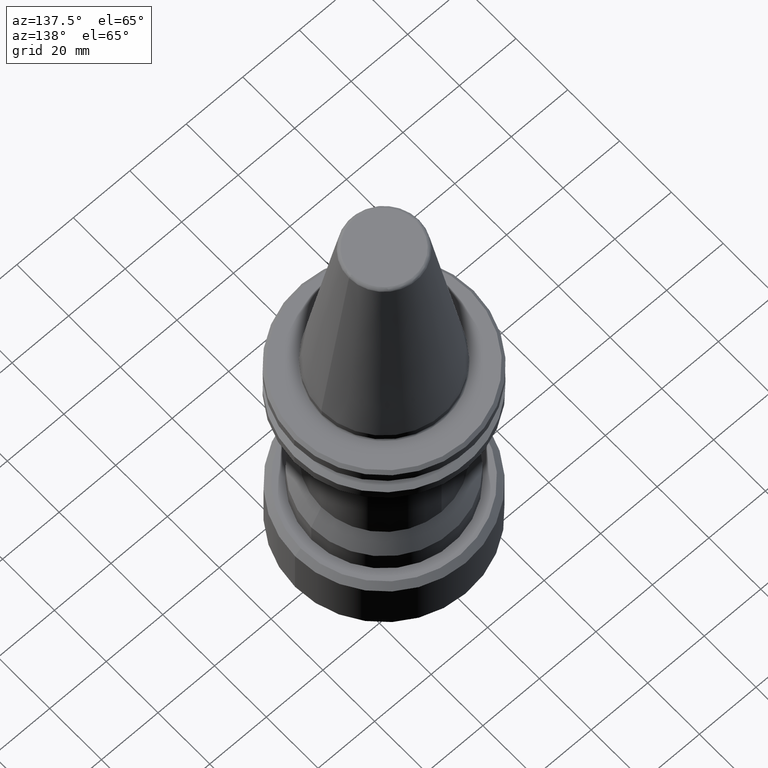
[diagram: clean part render]
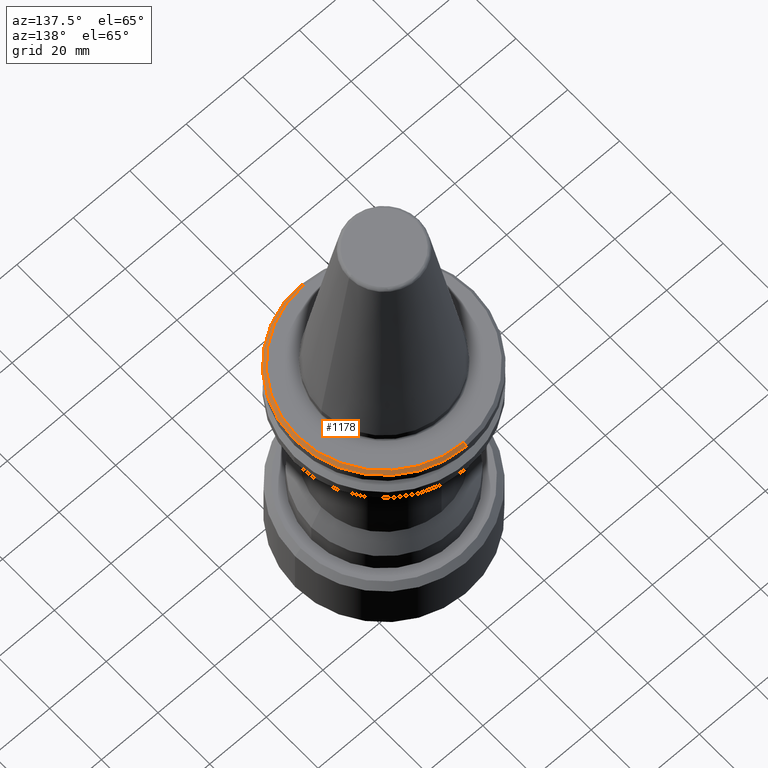
[diagram: same view with one face highlighted and labeled with its STEP entity id]
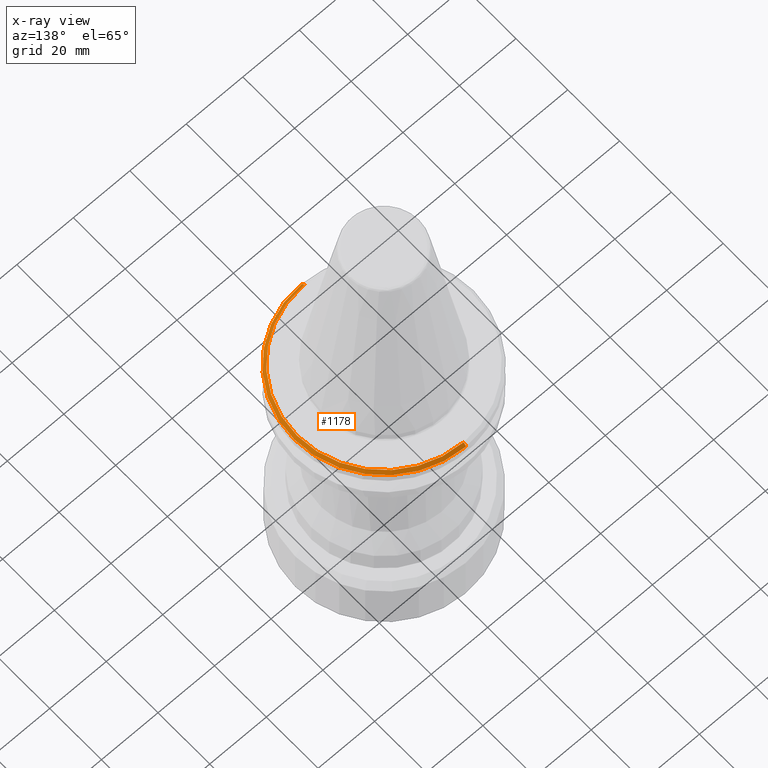
[diagram: x-ray of the same camera — body ghosted, the highlighted face saturated]
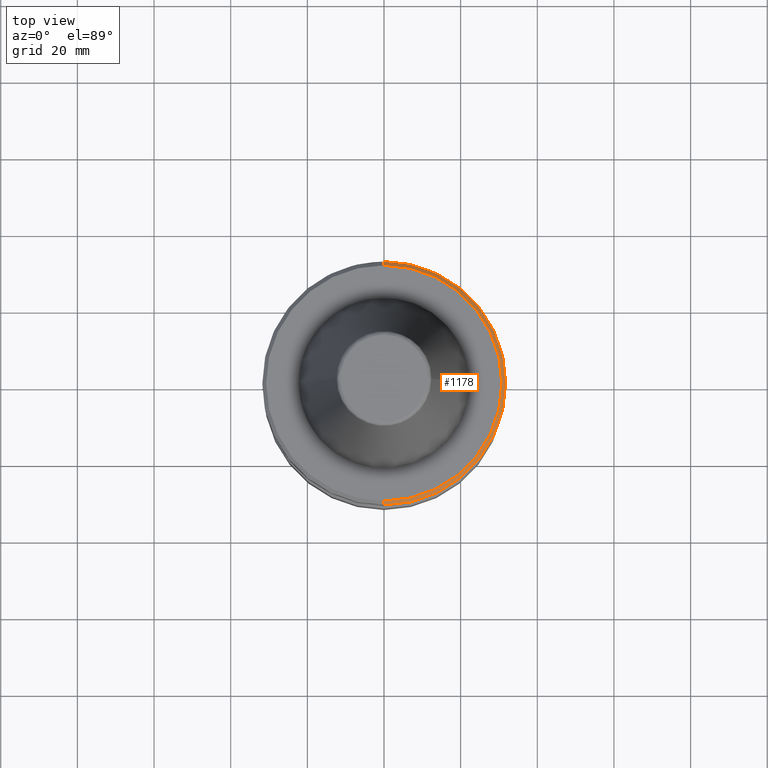
[diagram: same view with one face highlighted and labeled with its STEP entity id]
A machine part, auxiliary view. The second image highlights one B-rep face of the part: STEP entity #1178.
The next image is the same camera in x-ray: the body ghosted, the highlighted face saturated — about 0% of this face is hidden behind the body in this view.
A second angle (top view) of the same face is appended — the face is thin or edge-on in the first view.
In plain terms, the highlighted conical surface has half-angle 45 deg.
Its self-contained STEP definition (entity closure, byte-faithful):
#26 = VERTEX_POINT ( 'NONE', #996 ) ;
#36 = CIRCLE ( 'NONE', #1754, 31.75000000000005700 ) ;
#48 = AXIS2_PLACEMENT_3D ( 'NONE', #1418, #538, #1564 ) ;
#127 = DIRECTION ( 'NONE',  ( -0.0000000000000000000, -0.0000000000000000000, 1.000000000000000000 ) ) ;
#210 = CARTESIAN_POINT ( 'NONE',  ( 0.0000000000000000000, 0.0000000000000000000, -4.200000000000036600 ) ) ;
#371 = DIRECTION ( 'NONE',  ( 1.000000000000000000, 0.0000000000000000000, 0.0000000000000000000 ) ) ;
#455 = VECTOR ( 'NONE', #715, 1000.000000000000000 ) ;
#476 = LINE ( 'NONE', #1587, #455 ) ;
#538 = DIRECTION ( 'NONE',  ( -0.0000000000000000000, -0.0000000000000000000, 1.000000000000000000 ) ) ;
#563 = CARTESIAN_POINT ( 'NONE',  ( 0.0000000000000000000, 30.75000000000005700, -3.200000000000036100 ) ) ;
#580 = EDGE_CURVE ( 'NONE', #26, #748, #1088, .T. ) ;
#587 = EDGE_LOOP ( 'NONE', ( #1717, #1514, #1273, #984, #797 ) ) ;
#663 = CARTESIAN_POINT ( 'NONE',  ( 3.888253587292851200E-015, -31.75000000000003600, -4.200000000000036600 ) ) ;
#682 = CARTESIAN_POINT ( 'NONE',  ( 0.0000000000000000000, 31.75000000000003600, -4.200000000000036600 ) ) ;
#715 = DIRECTION ( 'NONE',  ( 0.0000000000000000000, 0.7071067811865471300, -0.7071067811865479100 ) ) ;
#748 = VERTEX_POINT ( 'NONE', #563 ) ;
#760 = CIRCLE ( 'NONE', #1281, 31.75000000000005700 ) ;
#797 = ORIENTED_EDGE ( 'NONE', *, *, #1580, .F. ) ;
#800 = VERTEX_POINT ( 'NONE', #1797 ) ;
#984 = ORIENTED_EDGE ( 'NONE', *, *, #1085, .T. ) ;
#996 = CARTESIAN_POINT ( 'NONE',  ( 3.827021247335484400E-015, -30.75000000000005700, -3.200000000000036100 ) ) ;
#1048 = CARTESIAN_POINT ( 'NONE',  ( 0.0000000000000000000, 0.0000000000000000000, -4.200000000000036600 ) ) ;
#1051 = VECTOR ( 'NONE', #1408, 1000.000000000000000 ) ;
#1052 = CONICAL_SURFACE ( 'NONE', #1766, 31.63284271276865700, 0.7853981633974477200 ) ;
#1085 = EDGE_CURVE ( 'NONE', #800, #1527, #760, .T. ) ;
#1088 = CIRCLE ( 'NONE', #48, 30.75000000000005700 ) ;
#1104 = CARTESIAN_POINT ( 'NONE',  ( 0.0000000000000000000, -5.945690617797291300E-033, -4.082842712768657700 ) ) ;
#1178 = ADVANCED_FACE ( 'NONE', ( #1359 ), #1052, .T. ) ;
#1188 = DIRECTION ( 'NONE',  ( 1.000000000000000000, 0.0000000000000000000, 0.0000000000000000000 ) ) ;
#1257 = DIRECTION ( 'NONE',  ( -0.0000000000000000000, -0.0000000000000000000, 1.000000000000000000 ) ) ;
#1266 = CARTESIAN_POINT ( 'NONE',  ( 3.873905957612381300E-015, -31.63284271276865700, -4.082842712768657700 ) ) ;
#1271 = EDGE_CURVE ( 'NONE', #26, #1439, #1465, .T. ) ;
#1273 = ORIENTED_EDGE ( 'NONE', *, *, #1850, .T. ) ;
#1281 = AXIS2_PLACEMENT_3D ( 'NONE', #210, #1257, #371 ) ;
#1359 = FACE_OUTER_BOUND ( 'NONE', #587, .T. ) ;
#1387 = DIRECTION ( 'NONE',  ( 0.0000000000000000000, 1.000000000000000000, 0.0000000000000000000 ) ) ;
#1408 = DIRECTION ( 'NONE',  ( 8.659560562354927900E-017, -0.7071067811865471300, -0.7071067811865479100 ) ) ;
#1418 = CARTESIAN_POINT ( 'NONE',  ( 0.0000000000000000000, 0.0000000000000000000, -3.200000000000036100 ) ) ;
#1439 = VERTEX_POINT ( 'NONE', #663 ) ;
#1465 = LINE ( 'NONE', #1266, #1051 ) ;
#1514 = ORIENTED_EDGE ( 'NONE', *, *, #1271, .T. ) ;
#1527 = VERTEX_POINT ( 'NONE', #682 ) ;
#1564 = DIRECTION ( 'NONE',  ( 1.000000000000000000, 0.0000000000000000000, 0.0000000000000000000 ) ) ;
#1580 = EDGE_CURVE ( 'NONE', #748, #1527, #476, .T. ) ;
#1587 = CARTESIAN_POINT ( 'NONE',  ( 0.0000000000000000000, 31.63284271276865700, -4.082842712768657700 ) ) ;
#1717 = ORIENTED_EDGE ( 'NONE', *, *, #580, .F. ) ;
#1754 = AXIS2_PLACEMENT_3D ( 'NONE', #1048, #127, #1188 ) ;
#1766 = AXIS2_PLACEMENT_3D ( 'NONE', #1104, #1818, #1387 ) ;
#1797 = CARTESIAN_POINT ( 'NONE',  ( 31.75000000000005700, 0.0000000000000000000, -4.200000000000036600 ) ) ;
#1818 = DIRECTION ( 'NONE',  ( 0.0000000000000000000, 1.370982914599533300E-017, -1.000000000000000000 ) ) ;
#1850 = EDGE_CURVE ( 'NONE', #1439, #800, #36, .T. ) ;